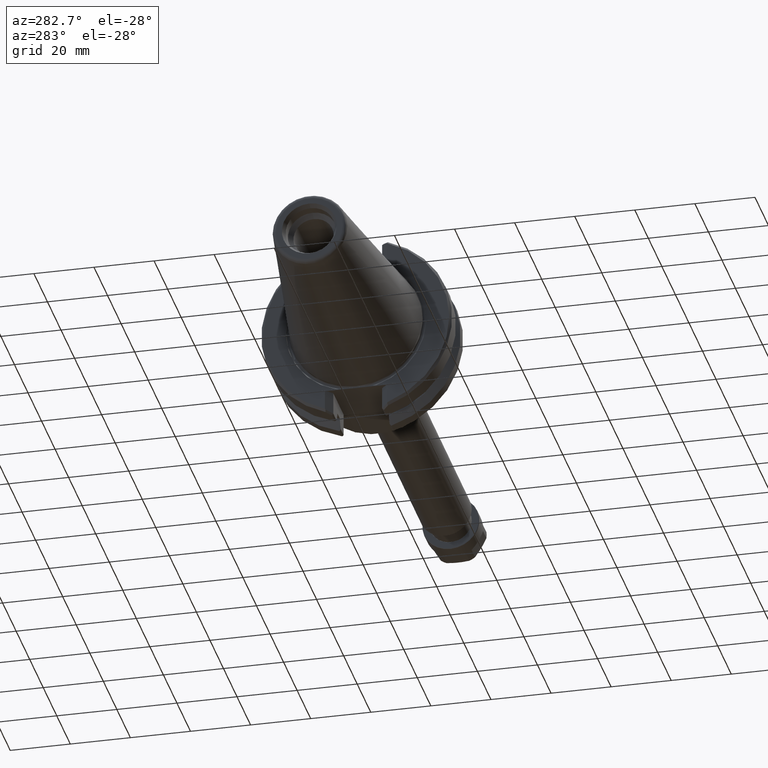
[diagram: clean part render]
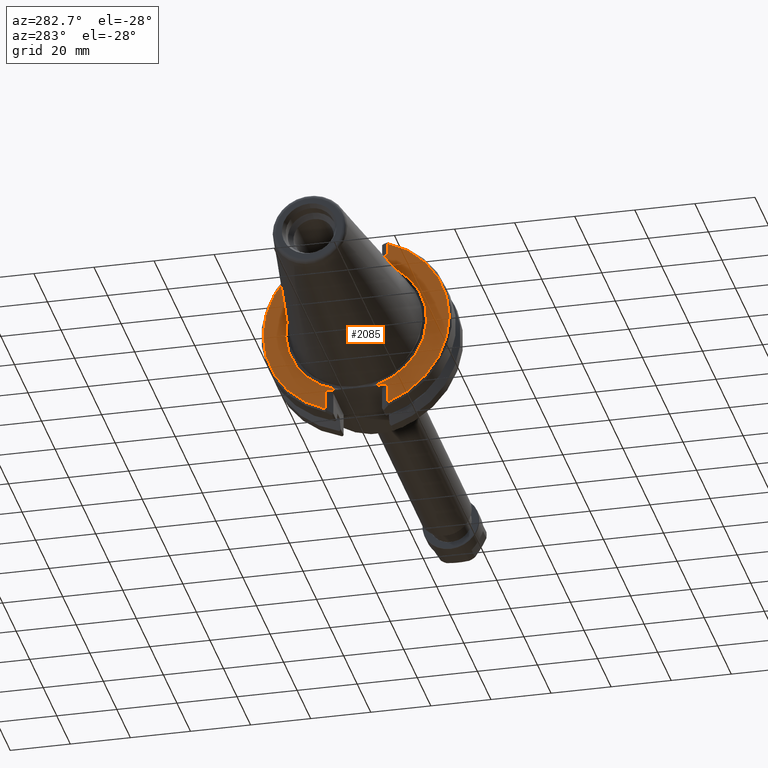
[diagram: same view with one face highlighted and labeled with its STEP entity id]
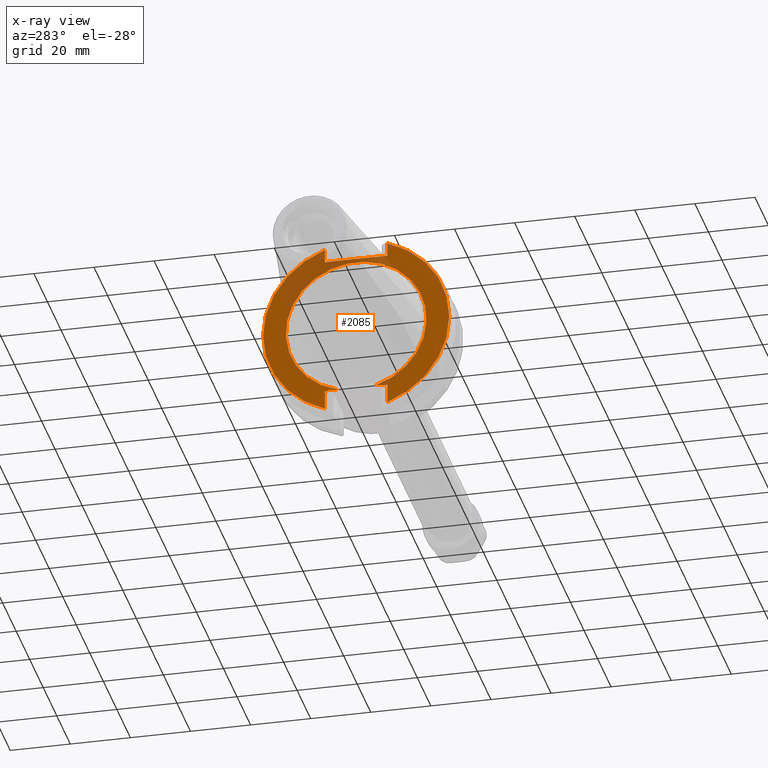
[diagram: x-ray of the same camera — body ghosted, the highlighted face saturated]
A machine part, auxiliary view. The second image highlights one B-rep face of the part: STEP entity #2085.
The next image is the same camera in x-ray: the body ghosted, the highlighted face saturated — about 19% of this face is hidden behind the body in this view.
In plain terms, the highlighted planar face has unit normal (-1, 0, 0).
Its self-contained STEP definition (entity closure, byte-faithful):
#159=LINE('',#3578,#273);
#166=LINE('',#3802,#280);
#167=LINE('',#3967,#281);
#172=LINE('',#3983,#286);
#177=LINE('',#3992,#291);
#191=LINE('',#4045,#305);
#192=LINE('',#4048,#306);
#273=VECTOR('',#2530,0.261043080132413);
#280=VECTOR('',#2549,0.177043080132434);
#281=VECTOR('',#2552,0.177043080132233);
#286=VECTOR('',#2569,0.82);
#291=VECTOR('',#2576,0.261043080132253);
#305=VECTOR('',#2600,0.158671957902933);
#306=VECTOR('',#2603,0.158671957902484);
#390=PLANE('',#2250);
#536=FACE_OUTER_BOUND('',#692,.T.);
#692=EDGE_LOOP('',(#1596,#1597,#1598,#1599,#1600,#1601,#1602,#1603,#1604,
#1605));
#848=CIRCLE('',#2230,1.22);
#850=CIRCLE('',#2234,1.22);
#855=CIRCLE('',#2251,0.922881240867132);
#981=VERTEX_POINT('',#3353);
#982=VERTEX_POINT('',#3357);
#989=VERTEX_POINT('',#3573);
#990=VERTEX_POINT('',#3577);
#994=VERTEX_POINT('',#3593);
#1001=VERTEX_POINT('',#3800);
#1004=VERTEX_POINT('',#3966);
#1012=VERTEX_POINT('',#3990);
#1028=VERTEX_POINT('',#4044);
#1029=VERTEX_POINT('',#4046);
#1194=EDGE_CURVE('',#981,#982,#848,.T.);
#1203=EDGE_CURVE('',#989,#990,#159,.T.);
#1209=EDGE_CURVE('',#994,#989,#850,.T.);
#1219=EDGE_CURVE('',#1001,#994,#166,.T.);
#1223=EDGE_CURVE('',#982,#1004,#167,.T.);
#1231=EDGE_CURVE('',#1001,#1004,#172,.T.);
#1236=EDGE_CURVE('',#1012,#981,#177,.T.);
#1256=EDGE_CURVE('',#1012,#1028,#191,.T.);
#1257=EDGE_CURVE('',#1028,#1029,#855,.T.);
#1258=EDGE_CURVE('',#1029,#990,#192,.T.);
#1596=ORIENTED_EDGE('',*,*,#1256,.T.);
#1597=ORIENTED_EDGE('',*,*,#1257,.T.);
#1598=ORIENTED_EDGE('',*,*,#1258,.T.);
#1599=ORIENTED_EDGE('',*,*,#1203,.F.);
#1600=ORIENTED_EDGE('',*,*,#1209,.F.);
#1601=ORIENTED_EDGE('',*,*,#1219,.F.);
#1602=ORIENTED_EDGE('',*,*,#1231,.T.);
#1603=ORIENTED_EDGE('',*,*,#1223,.F.);
#1604=ORIENTED_EDGE('',*,*,#1194,.F.);
#1605=ORIENTED_EDGE('',*,*,#1236,.F.);
#2085=ADVANCED_FACE('',(#536),#390,.T.);
#2230=AXIS2_PLACEMENT_3D('',#3358,#2526,#2527);
#2234=AXIS2_PLACEMENT_3D('',#3597,#2537,#2538);
#2250=AXIS2_PLACEMENT_3D('',#4043,#2598,#2599);
#2251=AXIS2_PLACEMENT_3D('',#4047,#2601,#2602);
#2526=DIRECTION('center_axis',(1.,0.,0.));
#2527=DIRECTION('ref_axis',(0.,1.,0.));
#2530=DIRECTION('',(0.,0.,1.));
#2537=DIRECTION('center_axis',(1.,0.,0.));
#2538=DIRECTION('ref_axis',(0.,-1.,0.));
#2549=DIRECTION('',(0.,0.,1.));
#2552=DIRECTION('',(0.,0.,-1.));
#2569=DIRECTION('',(0.,1.,2.4701457228374E-31));
#2576=DIRECTION('',(0.,0.,-1.));
#2598=DIRECTION('center_axis',(-1.,0.,0.));
#2599=DIRECTION('ref_axis',(0.,0.,1.));
#2600=DIRECTION('',(0.,-1.,0.));
#2601=DIRECTION('center_axis',(1.,0.,0.));
#2602=DIRECTION('ref_axis',(0.,1.,0.));
#2603=DIRECTION('',(0.,-1.,0.));
#3353=CARTESIAN_POINT('',(0.0397999999999998,0.410000000000225,-1.14904308013225));
#3357=CARTESIAN_POINT('',(0.0397999999999998,0.410000000000281,1.14904308013223));
#3358=CARTESIAN_POINT('Origin',(0.0397999999999998,0.,0.));
#3573=CARTESIAN_POINT('',(0.0397999999999998,-0.409999999999775,-1.14904308013241));
#3577=CARTESIAN_POINT('',(0.0397999999999998,-0.409999999999775,-0.888));
#3578=CARTESIAN_POINT('',(0.0397999999999998,-0.409999999999775,-0.444));
#3593=CARTESIAN_POINT('',(0.0397999999999998,-0.409999999999719,1.14904308013243));
#3597=CARTESIAN_POINT('Origin',(0.0397999999999998,0.,0.));
#3800=CARTESIAN_POINT('',(0.0397999999999998,-0.409999999999719,0.972));
#3802=CARTESIAN_POINT('',(0.0397999999999998,-0.409999999999719,0.486));
#3966=CARTESIAN_POINT('',(0.0397999999999998,0.410000000000281,0.972));
#3967=CARTESIAN_POINT('',(0.0397999999999998,0.410000000000281,0.486));
#3983=CARTESIAN_POINT('',(0.0397999999999998,0.53125000000014,0.972));
#3990=CARTESIAN_POINT('',(0.0397999999999998,0.410000000000225,-0.888));
#3992=CARTESIAN_POINT('',(0.0397999999999998,0.410000000000225,-0.444));
#4043=CARTESIAN_POINT('Origin',(0.0397999999999998,1.0625,0.));
#4044=CARTESIAN_POINT('',(0.0397999999999997,0.251328042097291,-0.888));
#4045=CARTESIAN_POINT('',(0.0397999999999998,0.531250000000168,-0.888));
#4046=CARTESIAN_POINT('',(0.0397999999999997,-0.251328042097291,-0.888));
#4047=CARTESIAN_POINT('Origin',(0.0397999999999998,0.,0.));
#4048=CARTESIAN_POINT('',(0.0397999999999998,0.531250000000168,-0.888));